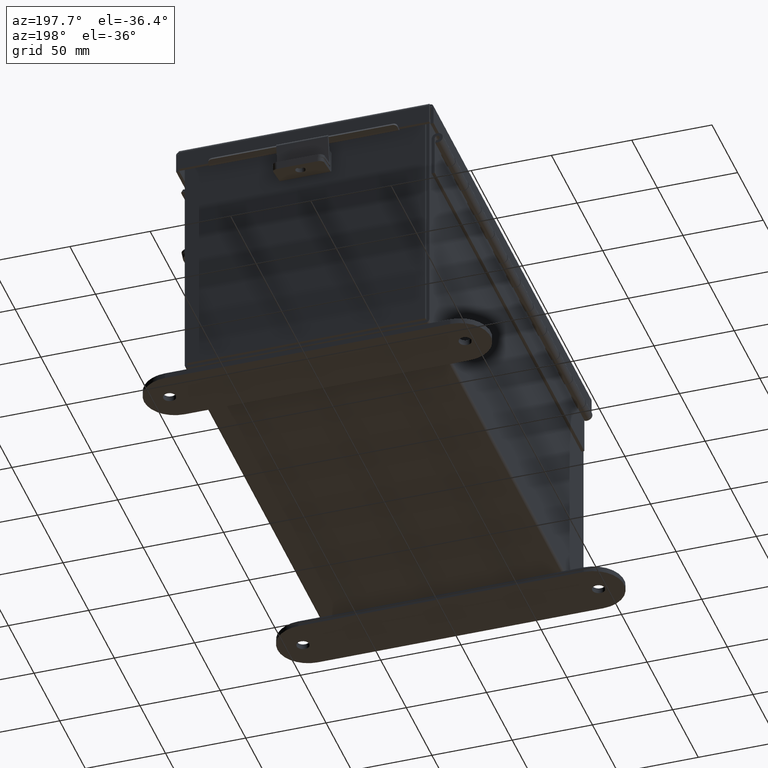
[diagram: clean part render]
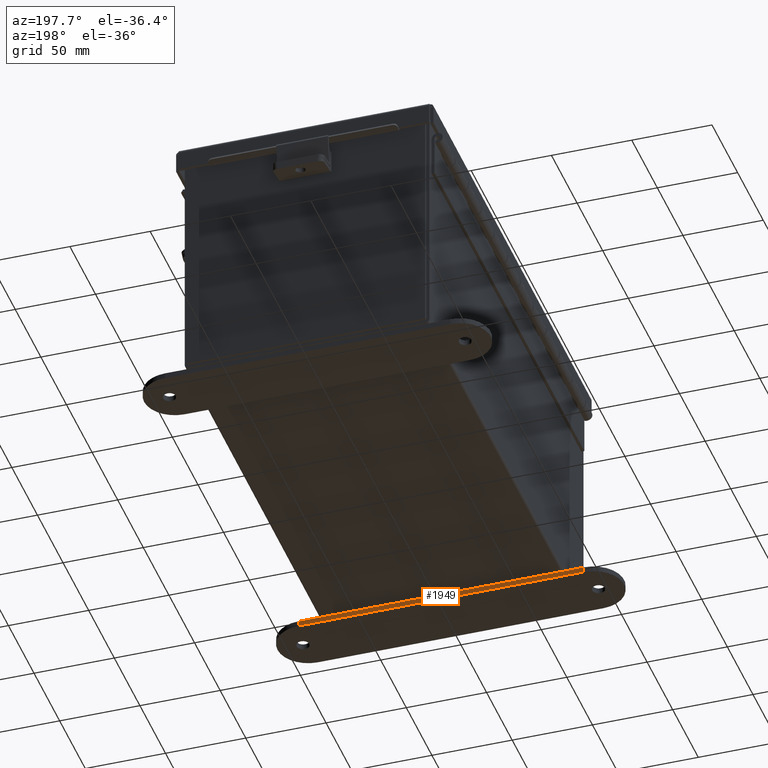
[diagram: same view with one face highlighted and labeled with its STEP entity id]
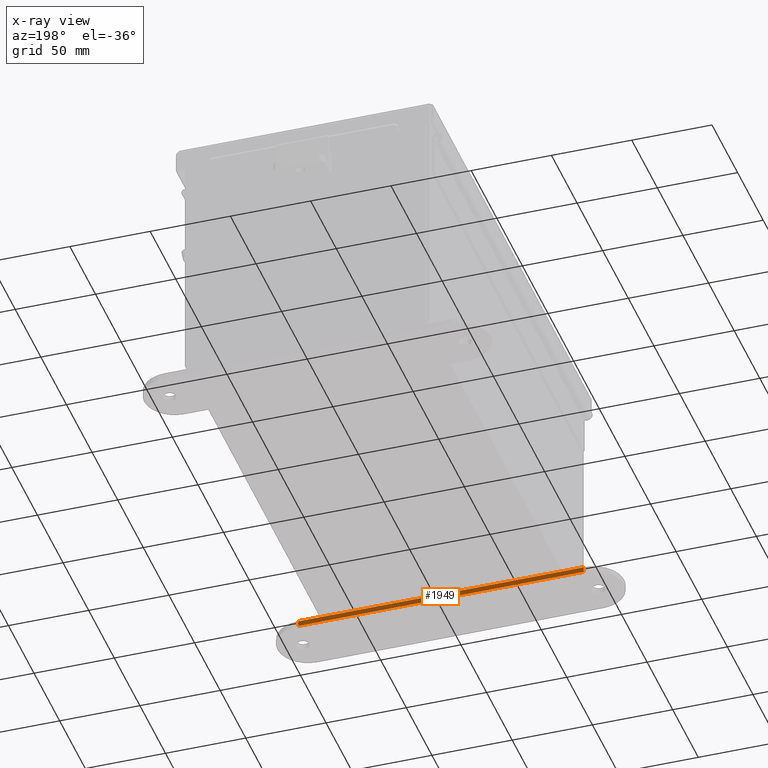
[diagram: x-ray of the same camera — body ghosted, the highlighted face saturated]
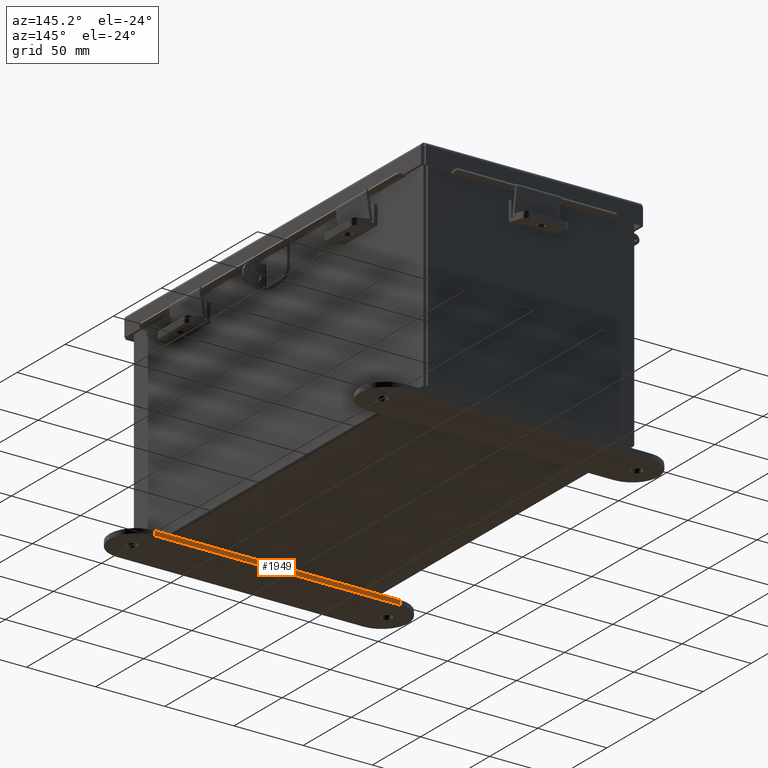
[diagram: same view with one face highlighted and labeled with its STEP entity id]
A machine part, auxiliary view. The second image highlights one B-rep face of the part: STEP entity #1949.
The next image is the same camera in x-ray: the body ghosted, the highlighted face saturated — about 0% of this face is hidden behind the body in this view.
A second angle (auxiliary view) of the same face is appended — the face is thin or edge-on in the first view.
In plain terms, the highlighted planar face has unit normal (-0, 1, 0).
Its self-contained STEP definition (entity closure, byte-faithful):
#66 = VECTOR ( 'NONE', #12803, 39.37007874015748100 ) ;
#950 = VECTOR ( 'NONE', #1404, 39.37007874015748100 ) ;
#1079 = FACE_OUTER_BOUND ( 'NONE', #10472, .T. ) ;
#1404 = DIRECTION ( 'NONE',  ( -1.000000000000000000, -1.170791997284684700E-016, 0.0000000000000000000 ) ) ;
#1827 = VECTOR ( 'NONE', #13035, 39.37007874015748100 ) ;
#1949 = ADVANCED_FACE ( 'NONE', ( #1079 ), #10682, .T. ) ;
#3308 = CARTESIAN_POINT ( 'NONE',  ( -3.499999999999998700, 1.162094064949612800, 0.0000000000000000000 ) ) ;
#3448 = EDGE_CURVE ( 'NONE', #12956, #9513, #9322, .T. ) ;
#4645 = VERTEX_POINT ( 'NONE', #11677 ) ;
#4818 = CARTESIAN_POINT ( 'NONE',  ( -3.499999999999998700, 1.162094064949612800, -0.1345000000000000100 ) ) ;
#6212 = CARTESIAN_POINT ( 'NONE',  ( -3.499999999999998700, 1.162094064949612800, 0.0000000000000000000 ) ) ;
#6747 = VERTEX_POINT ( 'NONE', #11130 ) ;
#6826 = CARTESIAN_POINT ( 'NONE',  ( -3.499999999999998700, 1.162094064949612800, -0.1345000000000000100 ) ) ;
#6908 = CARTESIAN_POINT ( 'NONE',  ( -3.499999999999998700, 1.162094064949612800, -0.1345000000000000100 ) ) ;
#7356 = EDGE_CURVE ( 'NONE', #4645, #9513, #13693, .T. ) ;
#7529 = ORIENTED_EDGE ( 'NONE', *, *, #3448, .T. ) ;
#8264 = CARTESIAN_POINT ( 'NONE',  ( 3.499999999999998700, 1.162094064949613600, -0.1345000000000000100 ) ) ;
#8267 = CARTESIAN_POINT ( 'NONE',  ( -3.499999999999998700, 1.162094064949612800, -0.1345000000000000100 ) ) ;
#8278 = VECTOR ( 'NONE', #15236, 39.37007874015748100 ) ;
#9322 = LINE ( 'NONE', #6826, #66 ) ;
#9456 = DIRECTION ( 'NONE',  ( -1.000000000000000000, -1.170791997284684700E-016, 0.0000000000000000000 ) ) ;
#9513 = VERTEX_POINT ( 'NONE', #3308 ) ;
#10472 = EDGE_LOOP ( 'NONE', ( #13878, #10835, #14934, #7529 ) ) ;
#10682 = PLANE ( 'NONE',  #12840 ) ;
#10835 = ORIENTED_EDGE ( 'NONE', *, *, #14845, .F. ) ;
#11130 = CARTESIAN_POINT ( 'NONE',  ( 3.499999999999998700, 1.162094064949613600, -0.1345000000000000100 ) ) ;
#11677 = CARTESIAN_POINT ( 'NONE',  ( 3.499999999999998700, 1.162094064949613600, 0.0000000000000000000 ) ) ;
#11752 = DIRECTION ( 'NONE',  ( -1.170791997284684700E-016, 1.000000000000000000, 0.0000000000000000000 ) ) ;
#11843 = LINE ( 'NONE', #6908, #8278 ) ;
#12803 = DIRECTION ( 'NONE',  ( 0.0000000000000000000, 0.0000000000000000000, 1.000000000000000000 ) ) ;
#12834 = EDGE_CURVE ( 'NONE', #6747, #12956, #11843, .T. ) ;
#12840 = AXIS2_PLACEMENT_3D ( 'NONE', #4818, #11752, #9456 ) ;
#12956 = VERTEX_POINT ( 'NONE', #8267 ) ;
#13035 = DIRECTION ( 'NONE',  ( 0.0000000000000000000, 0.0000000000000000000, 1.000000000000000000 ) ) ;
#13693 = LINE ( 'NONE', #6212, #950 ) ;
#13878 = ORIENTED_EDGE ( 'NONE', *, *, #7356, .F. ) ;
#14571 = LINE ( 'NONE', #8264, #1827 ) ;
#14845 = EDGE_CURVE ( 'NONE', #6747, #4645, #14571, .T. ) ;
#14934 = ORIENTED_EDGE ( 'NONE', *, *, #12834, .T. ) ;
#15236 = DIRECTION ( 'NONE',  ( -1.000000000000000000, -1.170791997284684700E-016, 0.0000000000000000000 ) ) ;